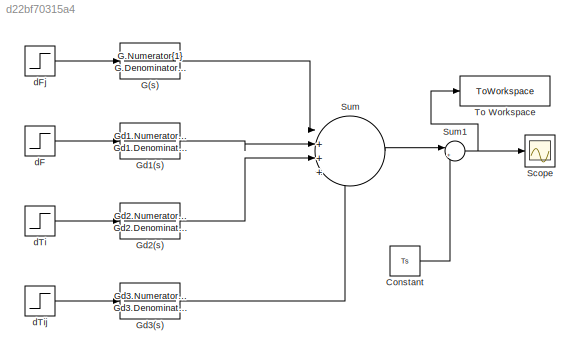
MODEL slx_d22bf70315a4
KIND model
CONFIG AbsTol = auto
CONFIG EnableMultiTasking = off
CONFIG FixedStep = auto
CONFIG MaxStep = auto
CONFIG MinStep = auto
CONFIG RelTol = 1e-3
CONFIG SampleTimeConstraint = Unconstrained
CONFIG SolverName = VariableStepAuto
CONFIG StartTime = 0.0
CONFIG StopTime = 1800
BLOCK [Constant] Constant
  Value = Ts
BLOCK [TransferFcn] G(s)
  Denominator = G.Denominator{1}
  Numerator = G.Numerator{1}
BLOCK [TransferFcn] Gd1(s)
  Denominator = Gd1.Denominator{1}
  Numerator = Gd1.Numerator{1}
BLOCK [TransferFcn] Gd2(s)
  Denominator = Gd2.Denominator{1}
  Numerator = Gd2.Numerator{1}
BLOCK [TransferFcn] Gd3(s)
  Denominator = Gd3.Denominator{1}
  Numerator = Gd3.Numerator{1}
BLOCK [Scope] Scope
  Floating = off
  NumInputPorts = 1
  Ports = [1]
  ScopeSpecificationString = Simulink.scopes.TimeScopeBlockCfg('CurrentConfiguration', extmgr.ConfigurationSet(extmgr.Configuration('Core','General UI',true),extmgr.Configuration('Core','Source UI',true),extmgr.Configuration('Sources','WiredSimulink',true),extmgr.Configuration('Visuals','Time Domain',true,'SerializedDisplays',{struct('MinYLimReal','51.55468','MaxYLimReal','52.70792','YLabelReal','','MinYLimMag','51.55468','Ma...<+1387ch>
BLOCK [Sum] Sum
  Inputs = |++++
  Ports = [4, 1]
BLOCK [Sum] Sum1
  Inputs = |++
  Ports = [2, 1]
BLOCK [ToWorkspace] To Workspace
  FixptAsFi = on
  MaxDataPoints = inf
  Ports = [1]
  SampleTime = -1
  SaveFormat = Structure With Time
  VariableName = simout3
BLOCK [Step] dF
  After = dF
  SampleTime = 0
BLOCK [Step] dFj
  After = dFj
  SampleTime = 0
BLOCK [Step] dTi
  After = dTi
  SampleTime = 0
BLOCK [Step] dTij
  After = dTij
  SampleTime = 0
LINE Constant:1 -> Sum1:2
LINE G(s):1 -> Sum:1
LINE Gd1(s):1 -> Sum:2
LINE Gd2(s):1 -> Sum:3
LINE Gd3(s):1 -> Sum:4
NET Sum1:1 -> Scope:1, To Workspace:1
LINE Sum:1 -> Sum1:1
LINE dF:1 -> Gd1(s):1
LINE dFj:1 -> G(s):1
LINE dTi:1 -> Gd2(s):1
LINE dTij:1 -> Gd3(s):1
note: NET lines group one-source signal fan-out (src -> all destinations, sorted); 1:1 wires keep LINE
